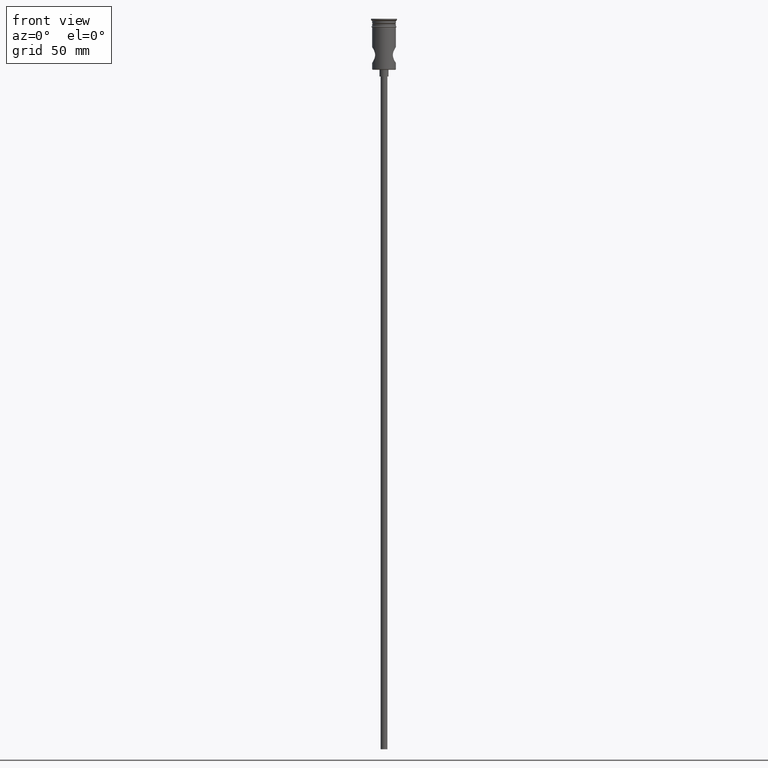
[diagram: clean part render]
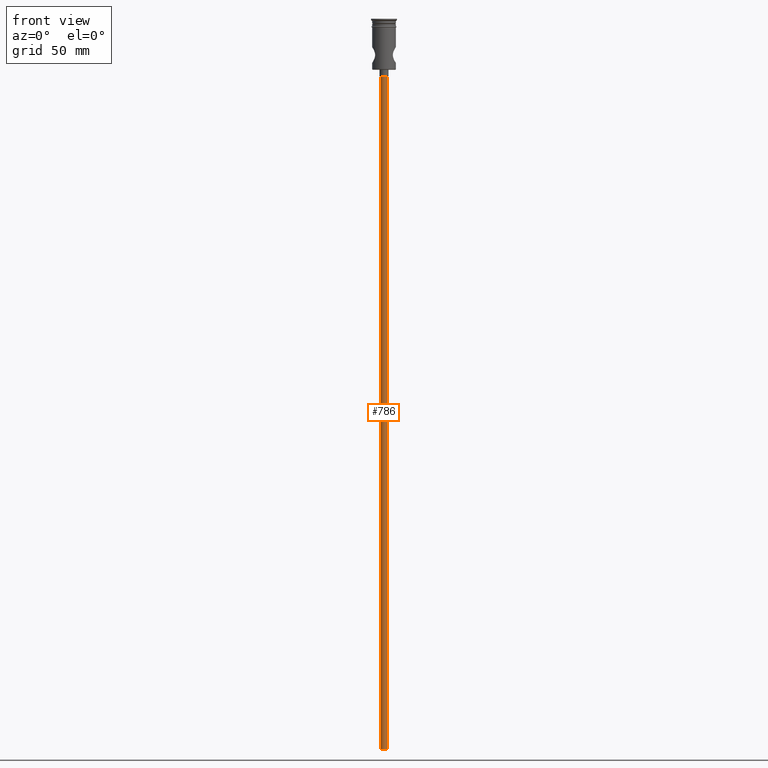
[diagram: same view with one face highlighted and labeled with its STEP entity id]
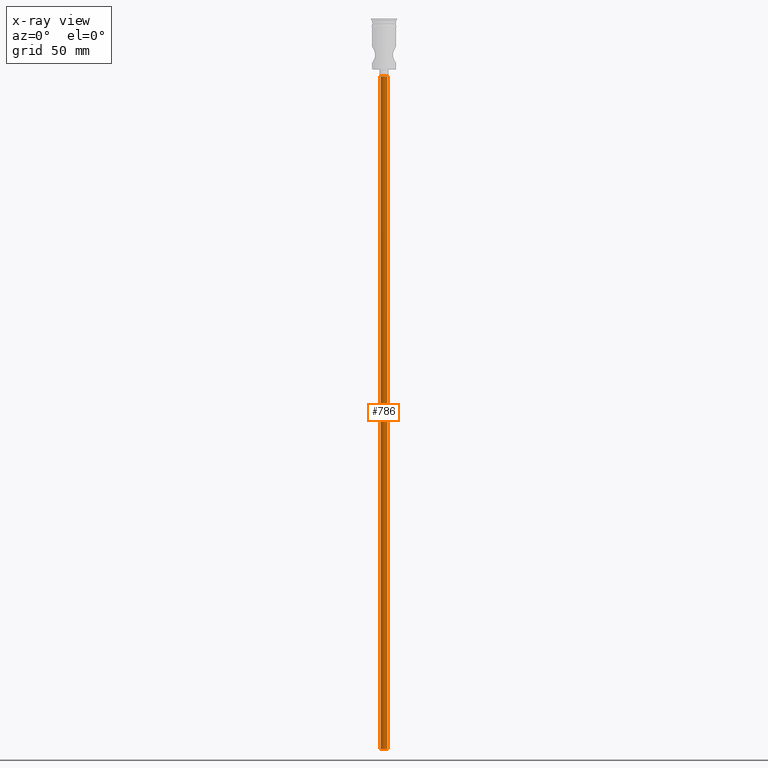
[diagram: x-ray of the same camera — body ghosted, the highlighted face saturated]
A machine part, front view. The second image highlights one B-rep face of the part: STEP entity #786.
The next image is the same camera in x-ray: the body ghosted, the highlighted face saturated — about 0% of this face is hidden behind the body in this view.
In plain terms, the highlighted cylindrical surface (edge-blend (fillet) strip) has radius 1.5 mm, axis along (-0, -0, 1).
Its self-contained STEP definition (entity closure, byte-faithful):
#109 = VERTEX_POINT ( 'NONE', #582 ) ;
#120 = CIRCLE ( 'NONE', #249, 1.500000000000000222 ) ;
#122 = DIRECTION ( 'NONE',  ( -0.000000000000000000, -0.000000000000000000, 1.000000000000000000 ) ) ;
#124 = VERTEX_POINT ( 'NONE', #1116 ) ;
#155 = VERTEX_POINT ( 'NONE', #245 ) ;
#227 = ORIENTED_EDGE ( 'NONE', *, *, #881, .T. ) ;
#245 = CARTESIAN_POINT ( 'NONE',  ( 1.500000000000000222, 0.000000000000000000, -25.50000000000000000 ) ) ;
#249 = AXIS2_PLACEMENT_3D ( 'NONE', #254, #259, #1156 ) ;
#254 = CARTESIAN_POINT ( 'NONE',  ( 0.000000000000000000, 0.000000000000000000, -25.50000000000000000 ) ) ;
#259 = DIRECTION ( 'NONE',  ( 0.000000000000000000, 0.000000000000000000, -1.000000000000000000 ) ) ;
#270 = ORIENTED_EDGE ( 'NONE', *, *, #815, .T. ) ;
#335 = DIRECTION ( 'NONE',  ( -1.000000000000000000, 0.000000000000000000, 0.000000000000000000 ) ) ;
#380 = ORIENTED_EDGE ( 'NONE', *, *, #548, .F. ) ;
#387 = DIRECTION ( 'NONE',  ( -0.000000000000000000, -0.000000000000000000, 1.000000000000000000 ) ) ;
#490 = CARTESIAN_POINT ( 'NONE',  ( 1.500000000000000222, 0.000000000000000000, -322.5000000000000000 ) ) ;
#548 = EDGE_CURVE ( 'NONE', #124, #109, #912, .T. ) ;
#582 = CARTESIAN_POINT ( 'NONE',  ( -1.500000000000000222, 1.836970198721030181E-16, -25.50000000000000000 ) ) ;
#670 = CARTESIAN_POINT ( 'NONE',  ( 0.000000000000000000, 0.000000000000000000, -322.5000000000000000 ) ) ;
#687 = CARTESIAN_POINT ( 'NONE',  ( -1.500000000000000222, 1.836970198721030181E-16, -322.5000000000000000 ) ) ;
#725 = EDGE_CURVE ( 'NONE', #827, #124, #832, .T. ) ;
#745 = AXIS2_PLACEMENT_3D ( 'NONE', #670, #122, #972 ) ;
#778 = ORIENTED_EDGE ( 'NONE', *, *, #725, .F. ) ;
#786 = ADVANCED_FACE ( 'NONE', ( #1416 ), #959, .T. ) ;
#813 = VECTOR ( 'NONE', #387, 1000.000000000000000 ) ;
#815 = EDGE_CURVE ( 'NONE', #827, #155, #863, .T. ) ;
#827 = VERTEX_POINT ( 'NONE', #1224 ) ;
#832 = CIRCLE ( 'NONE', #1079, 1.500000000000000222 ) ;
#863 = LINE ( 'NONE', #490, #998 ) ;
#881 = EDGE_CURVE ( 'NONE', #155, #109, #120, .T. ) ;
#887 = CARTESIAN_POINT ( 'NONE',  ( 0.000000000000000000, 0.000000000000000000, -322.5000000000000000 ) ) ;
#912 = LINE ( 'NONE', #687, #813 ) ;
#959 = CYLINDRICAL_SURFACE ( 'NONE', #745, 1.500000000000000222 ) ;
#972 = DIRECTION ( 'NONE',  ( 1.000000000000000000, 0.000000000000000000, 0.000000000000000000 ) ) ;
#998 = VECTOR ( 'NONE', #1247, 1000.000000000000000 ) ;
#1079 = AXIS2_PLACEMENT_3D ( 'NONE', #887, #1328, #335 ) ;
#1116 = CARTESIAN_POINT ( 'NONE',  ( -1.500000000000000222, 1.836970198721030181E-16, -322.5000000000000000 ) ) ;
#1156 = DIRECTION ( 'NONE',  ( -1.000000000000000000, 0.000000000000000000, 0.000000000000000000 ) ) ;
#1224 = CARTESIAN_POINT ( 'NONE',  ( 1.500000000000000222, 0.000000000000000000, -322.5000000000000000 ) ) ;
#1247 = DIRECTION ( 'NONE',  ( -0.000000000000000000, -0.000000000000000000, 1.000000000000000000 ) ) ;
#1328 = DIRECTION ( 'NONE',  ( 0.000000000000000000, 0.000000000000000000, -1.000000000000000000 ) ) ;
#1340 = EDGE_LOOP ( 'NONE', ( #380, #778, #270, #227 ) ) ;
#1416 = FACE_OUTER_BOUND ( 'NONE', #1340, .T. ) ;